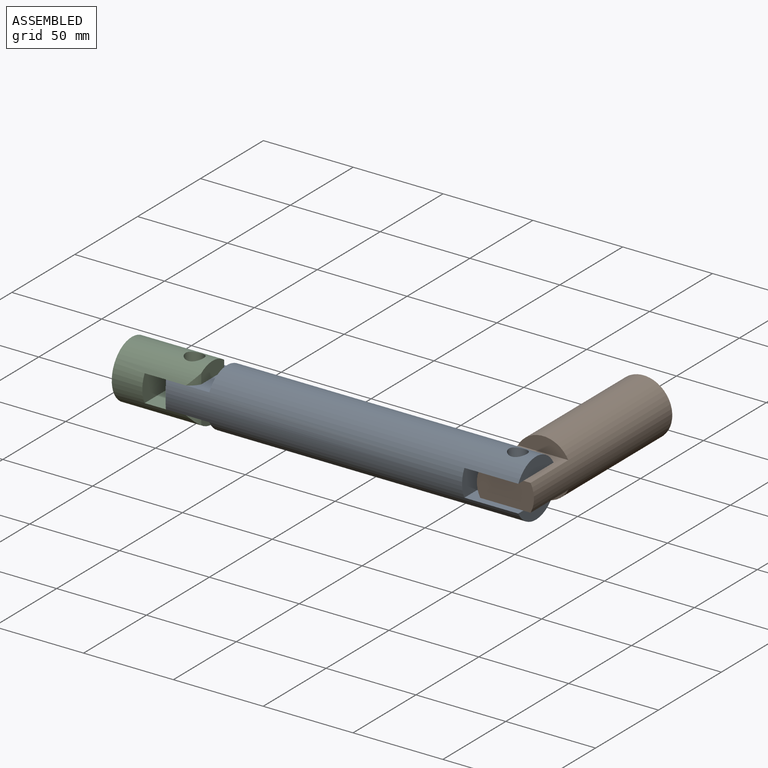
[diagram: assembled view]
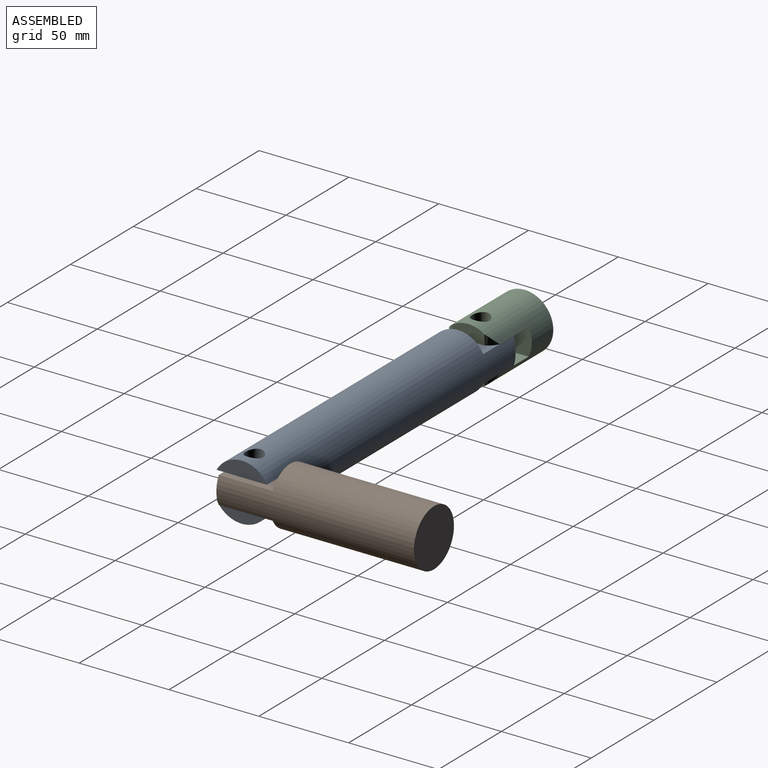
[diagram: assembled view, second angle]
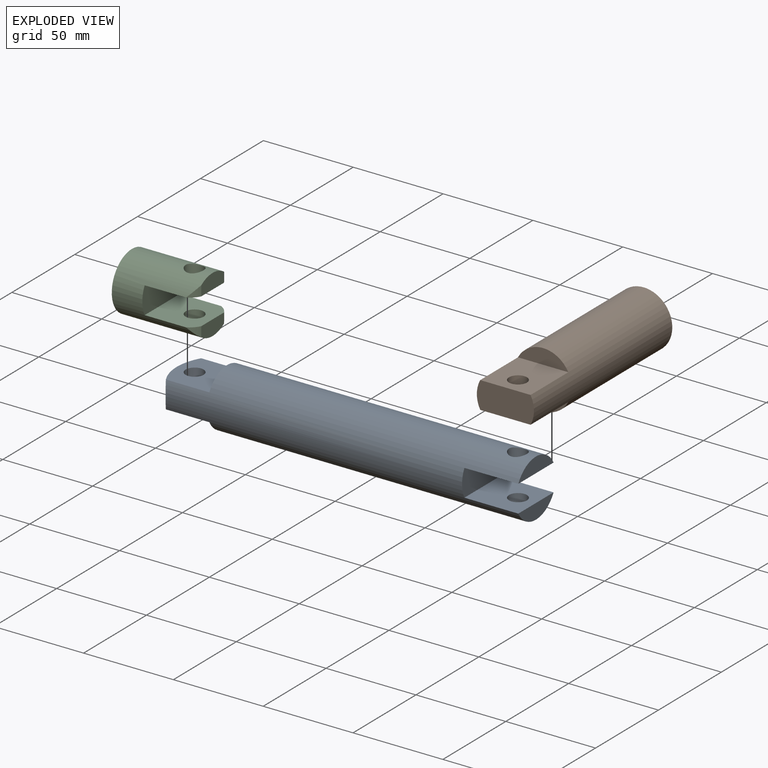
[diagram: exploded view]
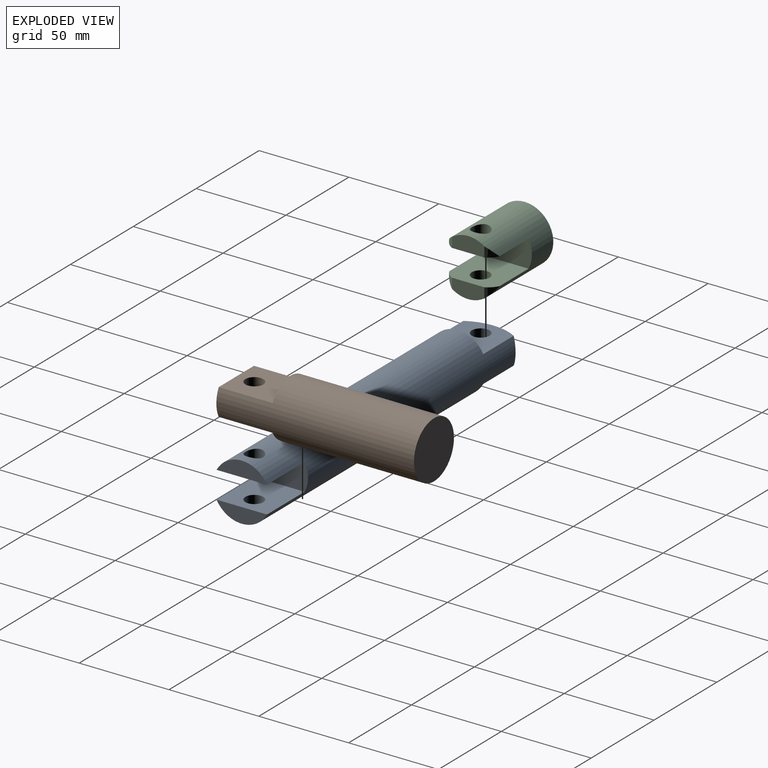
[diagram: exploded view, second angle]
ASSEMBLY  parts=3 mates=4
PART A: 14 faces, bbox 200x31.8x31.8 mm
  f0: plane 28.04x8.4mm, normal (-1,0,0), area 167.8mm2, adj f1,f10
  f1: cylinder r=15.9mm len=196.2mm, axis (-1,0,0), area 16818.4mm2, adj f0,f2,f3,f4,f5,f6,f8,f9
  f2: plane 28.04x28mm, normal (0,0,-1), area 672.1mm2, adj f1,f5,f7,f8
  f3: plane 28.04x28mm, normal (0,0,1), area 672.1mm2, adj f1,f6,f7,f8
  f4: plane 28.04x8.4mm, normal (-1,0,0), area 167.8mm2, adj f1,f11
  f5: plane 28.04x8.4mm, normal (1,0,0), area 167.8mm2, adj f1,f2
  f6: plane 28.04x8.4mm, normal (1,0,0), area 167.8mm2, adj f1,f3
  f7: cylinder r=5mm len=15mm, axis (0,0,1), area 471.2mm2, adj f2,f3
  f8: cylinder r=27.78mm len=31.8mm, axis (0,0,1), area 485.9mm2, adj f1,f2,f3
  f9: plane 31.8x15mm, normal (-1,0,0), area 458.7mm2, adj f1,f10,f11
  f10: plane 30x28.04mm, normal (0,0,-1), area 762.7mm2, adj f0,f1,f9,f13
  f11: plane 30x28.04mm, normal (0,0,1), area 762.7mm2, adj f1,f4,f9,f12
  f12: cylinder r=5mm len=10mm, axis (0,0,1), area 251.3mm2, adj f1,f11
  f13: cylinder r=5mm len=10mm, axis (0,0,1), area 251.3mm2, adj f1,f10
PART B: 8 faces, bbox 110x31.8x31.8 mm
  f0: plane 31.8x15mm, normal (-1,0,0), area 458.7mm2, adj f1,f3,f5
  f1: cylinder r=15.9mm len=110mm, axis (-1,0,0), area 8929.5mm2, adj f0,f2,f3,f4,f5,f6
  f2: plane 31.8x31.8mm, normal (1,0,0), area 794.2mm2, adj f1
  f3: plane 30x28.04mm, normal (0,0,-1), area 762.7mm2, adj f0,f1,f4,f7
  f4: plane 28.04x8.4mm, normal (-1,0,0), area 167.8mm2, adj f1,f3
  f5: plane 30x28.04mm, normal (0,0,1), area 762.7mm2, adj f0,f1,f6,f7
  f6: plane 28.04x8.4mm, normal (-1,0,0), area 167.8mm2, adj f1,f5
  f7: cylinder r=5mm len=15mm, axis (0,0,-1), area 471.2mm2, adj f3,f5
PART C: 13 faces, bbox 45x31.8x31.8 mm
  f0: plane 18.04x8.4mm, normal (1,0,0), area 135.3mm2, adj f1,f4,f9,f10
  f1: cylinder r=15.9mm len=45mm, axis (-1,0,0), area 3394.9mm2, adj f0,f2,f3,f4,f5,f6,f7,f8
  f2: plane 18.04x8.4mm, normal (1,0,0), area 135.3mm2, adj f1,f3,f11,f12
  f3: plane 28.04x28mm, normal (0,0,-1), area 686.8mm2, adj f1,f2,f6,f8,f11,f12
  f4: plane 28.04x28mm, normal (0,0,1), area 686.8mm2, adj f0,f1,f6,f7,f9,f10
  f5: plane 31.8x31.8mm, normal (-1,0,0), area 794.2mm2, adj f1
  f6: plane 31.8x15mm, normal (1,0,0), area 458.7mm2, adj f1,f3,f4
  f7: cylinder r=5mm len=10mm, axis (0,0,1), area 251.3mm2, adj f1,f4
  f8: cylinder r=5mm len=10mm, axis (0,0,1), area 251.3mm2, adj f1,f3
  f9: cylinder r=11.65mm len=5.59mm, axis (0,0,1), area 21.2mm2, adj f0,f1,f4
  f10: cylinder r=11.65mm len=5.59mm, axis (0,0,1), area 21.2mm2, adj f0,f1,f4
  f11: cylinder r=11.65mm len=5.59mm, axis (0,0,1), area 21.2mm2, adj f1,f2,f3
  f12: cylinder r=11.65mm len=5.59mm, axis (0,0,1), area 21.2mm2, adj f1,f2,f3
PLACE A rot(axis=(0,0,-1),180deg) t=(241.24,29.34,57.73)mm
PLACE B rot(axis=(0,0,1),90deg) t=(331.25,19.34,57.73)mm
PLACE C rot(axis=(-1,0.02,0.08),0deg) t=(116.24,29.34,57.73)mm fixed
MATE planar A.f3 <-> C.f3  axis (0,0,1) through (156.37,29.34,65.23)mm
MATE planar B.f5 <-> A.f10  axis (0,0,1) through (331.24,34.86,65.23)mm
MATE revolute A.f7 <-> C.f7  axis (0,0,1) through (151.24,29.34,65.23)mm
MATE revolute B.f7 <-> A.f12  axis (0,0,-1) through (331.24,29.34,50.23)mm
